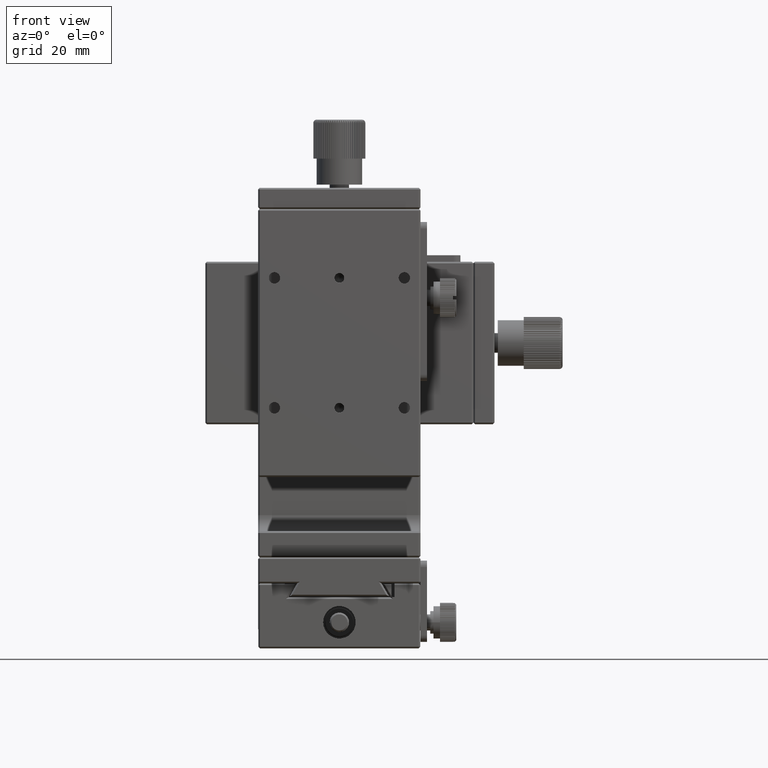
[diagram: clean part render]
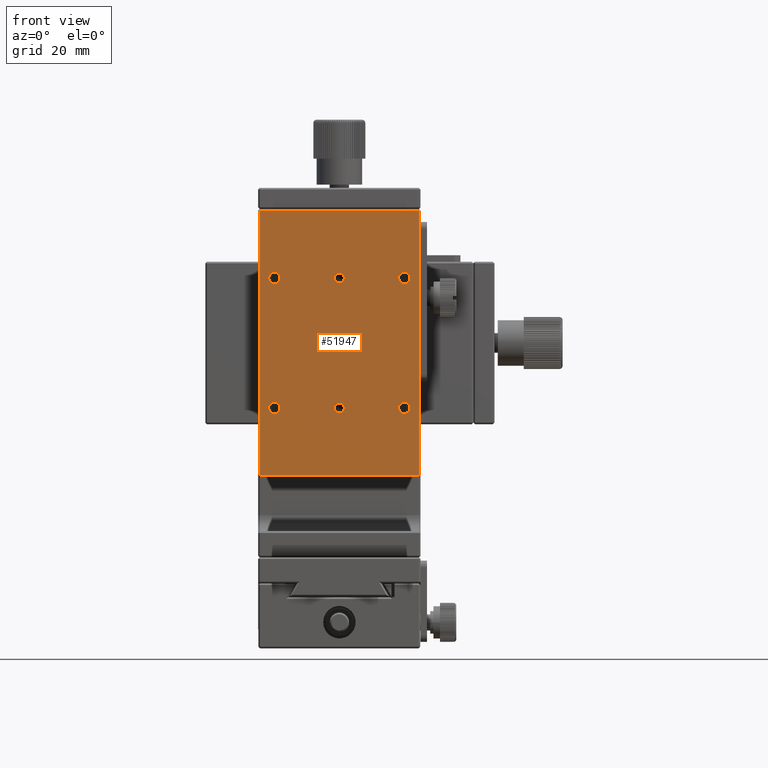
[diagram: same view with one face highlighted and labeled with its STEP entity id]
A machine part, front view. The second image highlights one B-rep face of the part: STEP entity #51947.
In plain terms, the highlighted planar face has unit normal (0, 1, 0).
Its self-contained STEP definition (entity closure, byte-faithful):
#482 = EDGE_LOOP ( 'NONE', ( #34603 ) ) ;
#572 = DIRECTION ( 'NONE',  ( 1.000000000000000000, 0.000000000000000000, -0.000000000000000000 ) ) ;
#2443 = DIRECTION ( 'NONE',  ( 0.000000000000000000, -0.000000000000000000, 1.000000000000000000 ) ) ;
#2453 = CARTESIAN_POINT ( 'NONE',  ( 24.50000000000000000, -3.388131789017201356E-17, 82.00000000000000000 ) ) ;
#2923 = VERTEX_POINT ( 'NONE', #40013 ) ;
#3235 = FACE_BOUND ( 'NONE', #482, .T. ) ;
#4165 = CARTESIAN_POINT ( 'NONE',  ( -24.50000000000000000, 2.004932778284664585E-17, 82.00000000000000000 ) ) ;
#4291 = CIRCLE ( 'NONE', #71945, 1.750000000000001554 ) ;
#4509 = CARTESIAN_POINT ( 'NONE',  ( -20.00000000000000000, 0.000000000000000000, 61.25000000000000000 ) ) ;
#4678 = VERTEX_POINT ( 'NONE', #4165 ) ;
#4740 = EDGE_LOOP ( 'NONE', ( #66484 ) ) ;
#4891 = CARTESIAN_POINT ( 'NONE',  ( 20.00000000000000000, 0.000000000000000000, 19.50000000000000000 ) ) ;
#4896 = DIRECTION ( 'NONE',  ( 0.000000000000000000, 0.000000000000000000, -1.000000000000000000 ) ) ;
#5298 = DIRECTION ( 'NONE',  ( 0.000000000000000000, -1.000000000000000000, 0.000000000000000000 ) ) ;
#5358 = AXIS2_PLACEMENT_3D ( 'NONE', #33415, #52164, #2443 ) ;
#5984 = DIRECTION ( 'NONE',  ( -0.000000000000000000, 0.000000000000000000, -1.000000000000000000 ) ) ;
#6516 = VERTEX_POINT ( 'NONE', #7075 ) ;
#7075 = CARTESIAN_POINT ( 'NONE',  ( -24.50000000000000000, 1.355252715606880543E-16, 0.4999999999999951150 ) ) ;
#8544 = FACE_OUTER_BOUND ( 'NONE', #17939, .T. ) ;
#10587 = EDGE_CURVE ( 'NONE', #4678, #68193, #43770, .T. ) ;
#11042 = DIRECTION ( 'NONE',  ( 0.000000000000000000, 0.000000000000000000, -1.000000000000000000 ) ) ;
#11299 = CARTESIAN_POINT ( 'NONE',  ( 24.50000000000000000, 0.000000000000000000, 82.50000000000000000 ) ) ;
#14536 = CIRCLE ( 'NONE', #53551, 1.750000000000001554 ) ;
#14795 = DIRECTION ( 'NONE',  ( 0.000000000000000000, -1.000000000000000000, 0.000000000000000000 ) ) ;
#16072 = EDGE_CURVE ( 'NONE', #68193, #33698, #36984, .T. ) ;
#16755 = VERTEX_POINT ( 'NONE', #4891 ) ;
#16956 = CARTESIAN_POINT ( 'NONE',  ( -20.00000000000000000, 0.000000000000000000, 59.50000000000000000 ) ) ;
#17300 = DIRECTION ( 'NONE',  ( -0.000000000000000000, -1.000000000000000000, -0.000000000000000000 ) ) ;
#17939 = EDGE_LOOP ( 'NONE', ( #25032, #65792, #22505, #53819 ) ) ;
#17950 = CIRCLE ( 'NONE', #19245, 1.500000000000001332 ) ;
#18758 = CARTESIAN_POINT ( 'NONE',  ( 0.000000000000000000, 0.000000000000000000, 22.75000000000000355 ) ) ;
#19245 = AXIS2_PLACEMENT_3D ( 'NONE', #35643, #17300, #48250 ) ;
#21569 = FACE_BOUND ( 'NONE', #24149, .T. ) ;
#22420 = AXIS2_PLACEMENT_3D ( 'NONE', #4509, #53436, #11042 ) ;
#22505 = ORIENTED_EDGE ( 'NONE', *, *, #77625, .F. ) ;
#24149 = EDGE_LOOP ( 'NONE', ( #59757 ) ) ;
#24444 = VERTEX_POINT ( 'NONE', #18758 ) ;
#24634 = CARTESIAN_POINT ( 'NONE',  ( 24.50000000000000000, 2.055697127830021382E-17, 0.5000000000000002220 ) ) ;
#25013 = CIRCLE ( 'NONE', #70557, 1.750000000000001554 ) ;
#25032 = ORIENTED_EDGE ( 'NONE', *, *, #16072, .F. ) ;
#27119 = LINE ( 'NONE', #39762, #67930 ) ;
#27123 = CARTESIAN_POINT ( 'NONE',  ( 20.00000000000000000, 0.000000000000000000, 21.25000000000000000 ) ) ;
#28175 = ORIENTED_EDGE ( 'NONE', *, *, #77960, .F. ) ;
#30521 = VECTOR ( 'NONE', #79596, 1000.000000000000000 ) ;
#31086 = LINE ( 'NONE', #54733, #30521 ) ;
#33415 = CARTESIAN_POINT ( 'NONE',  ( -25.00000000000000000, 0.000000000000000000, 82.50000000000000000 ) ) ;
#33698 = VERTEX_POINT ( 'NONE', #24634 ) ;
#33912 = ORIENTED_EDGE ( 'NONE', *, *, #75429, .F. ) ;
#34603 = ORIENTED_EDGE ( 'NONE', *, *, #78968, .F. ) ;
#35010 = FACE_BOUND ( 'NONE', #74276, .T. ) ;
#35643 = CARTESIAN_POINT ( 'NONE',  ( 0.000000000000000000, 0.000000000000000000, 21.25000000000000000 ) ) ;
#36984 = LINE ( 'NONE', #11299, #71783 ) ;
#37467 = EDGE_CURVE ( 'NONE', #2923, #2923, #77124, .T. ) ;
#39762 = CARTESIAN_POINT ( 'NONE',  ( -25.00000000000000000, 0.000000000000000000, 0.5000000000000004441 ) ) ;
#40013 = CARTESIAN_POINT ( 'NONE',  ( 0.000000000000000000, 0.000000000000000000, 62.75000000000000000 ) ) ;
#41496 = EDGE_CURVE ( 'NONE', #16755, #16755, #4291, .T. ) ;
#42226 = VERTEX_POINT ( 'NONE', #47922 ) ;
#43770 = LINE ( 'NONE', #62515, #45109 ) ;
#44951 = CARTESIAN_POINT ( 'NONE',  ( 20.00000000000000000, 0.000000000000000000, 61.25000000000000000 ) ) ;
#45109 = VECTOR ( 'NONE', #572, 1000.000000000000000 ) ;
#47152 = CIRCLE ( 'NONE', #22420, 1.750000000000001554 ) ;
#47244 = FACE_BOUND ( 'NONE', #73514, .T. ) ;
#47330 = EDGE_CURVE ( 'NONE', #24444, #24444, #17950, .T. ) ;
#47922 = CARTESIAN_POINT ( 'NONE',  ( -20.00000000000000000, 0.000000000000000000, 19.50000000000000000 ) ) ;
#48250 = DIRECTION ( 'NONE',  ( 0.000000000000000000, 0.000000000000000000, 1.000000000000000000 ) ) ;
#48327 = VERTEX_POINT ( 'NONE', #61365 ) ;
#49137 = VERTEX_POINT ( 'NONE', #16956 ) ;
#51947 = ADVANCED_FACE ( 'NONE', ( #8544, #35010, #21569, #52561, #47244, #59860, #3235 ), #52948, .F. ) ;
#52164 = DIRECTION ( 'NONE',  ( 0.000000000000000000, 1.000000000000000000, 0.000000000000000000 ) ) ;
#52561 = FACE_BOUND ( 'NONE', #4740, .T. ) ;
#52948 = PLANE ( 'NONE',  #5358 ) ;
#53286 = DIRECTION ( 'NONE',  ( -0.000000000000000000, -1.000000000000000000, -0.000000000000000000 ) ) ;
#53436 = DIRECTION ( 'NONE',  ( 0.000000000000000000, -1.000000000000000000, 0.000000000000000000 ) ) ;
#53551 = AXIS2_PLACEMENT_3D ( 'NONE', #56254, #5298, #4896 ) ;
#53819 = ORIENTED_EDGE ( 'NONE', *, *, #57541, .F. ) ;
#54102 = DIRECTION ( 'NONE',  ( 0.000000000000000000, 0.000000000000000000, 1.000000000000000000 ) ) ;
#54164 = ORIENTED_EDGE ( 'NONE', *, *, #47330, .F. ) ;
#54733 = CARTESIAN_POINT ( 'NONE',  ( -24.50000000000000000, 0.000000000000000000, 82.50000000000000000 ) ) ;
#56254 = CARTESIAN_POINT ( 'NONE',  ( -20.00000000000000000, 0.000000000000000000, 21.25000000000000000 ) ) ;
#57541 = EDGE_CURVE ( 'NONE', #33698, #6516, #27119, .T. ) ;
#58916 = AXIS2_PLACEMENT_3D ( 'NONE', #60621, #53286, #54102 ) ;
#59609 = DIRECTION ( 'NONE',  ( 0.000000000000000000, 0.000000000000000000, -1.000000000000000000 ) ) ;
#59757 = ORIENTED_EDGE ( 'NONE', *, *, #37467, .F. ) ;
#59860 = FACE_BOUND ( 'NONE', #61788, .T. ) ;
#60621 = CARTESIAN_POINT ( 'NONE',  ( 0.000000000000000000, 0.000000000000000000, 61.25000000000000000 ) ) ;
#61365 = CARTESIAN_POINT ( 'NONE',  ( 20.00000000000000000, 0.000000000000000000, 59.50000000000000000 ) ) ;
#61788 = EDGE_LOOP ( 'NONE', ( #28175 ) ) ;
#62515 = CARTESIAN_POINT ( 'NONE',  ( -25.00000000000000000, 0.000000000000000000, 82.00000000000000000 ) ) ;
#63017 = DIRECTION ( 'NONE',  ( -1.000000000000000000, -0.000000000000000000, 0.000000000000000000 ) ) ;
#63415 = DIRECTION ( 'NONE',  ( 0.000000000000000000, -1.000000000000000000, 0.000000000000000000 ) ) ;
#65792 = ORIENTED_EDGE ( 'NONE', *, *, #10587, .F. ) ;
#66484 = ORIENTED_EDGE ( 'NONE', *, *, #41496, .F. ) ;
#67930 = VECTOR ( 'NONE', #63017, 1000.000000000000000 ) ;
#68193 = VERTEX_POINT ( 'NONE', #2453 ) ;
#70193 = DIRECTION ( 'NONE',  ( 0.000000000000000000, 0.000000000000000000, -1.000000000000000000 ) ) ;
#70557 = AXIS2_PLACEMENT_3D ( 'NONE', #44951, #14795, #70193 ) ;
#71783 = VECTOR ( 'NONE', #5984, 1000.000000000000000 ) ;
#71945 = AXIS2_PLACEMENT_3D ( 'NONE', #27123, #63415, #59609 ) ;
#73514 = EDGE_LOOP ( 'NONE', ( #33912 ) ) ;
#74276 = EDGE_LOOP ( 'NONE', ( #54164 ) ) ;
#75429 = EDGE_CURVE ( 'NONE', #48327, #48327, #25013, .T. ) ;
#77124 = CIRCLE ( 'NONE', #58916, 1.500000000000001332 ) ;
#77625 = EDGE_CURVE ( 'NONE', #6516, #4678, #31086, .T. ) ;
#77960 = EDGE_CURVE ( 'NONE', #42226, #42226, #14536, .T. ) ;
#78968 = EDGE_CURVE ( 'NONE', #49137, #49137, #47152, .T. ) ;
#79596 = DIRECTION ( 'NONE',  ( 0.000000000000000000, -0.000000000000000000, 1.000000000000000000 ) ) ;